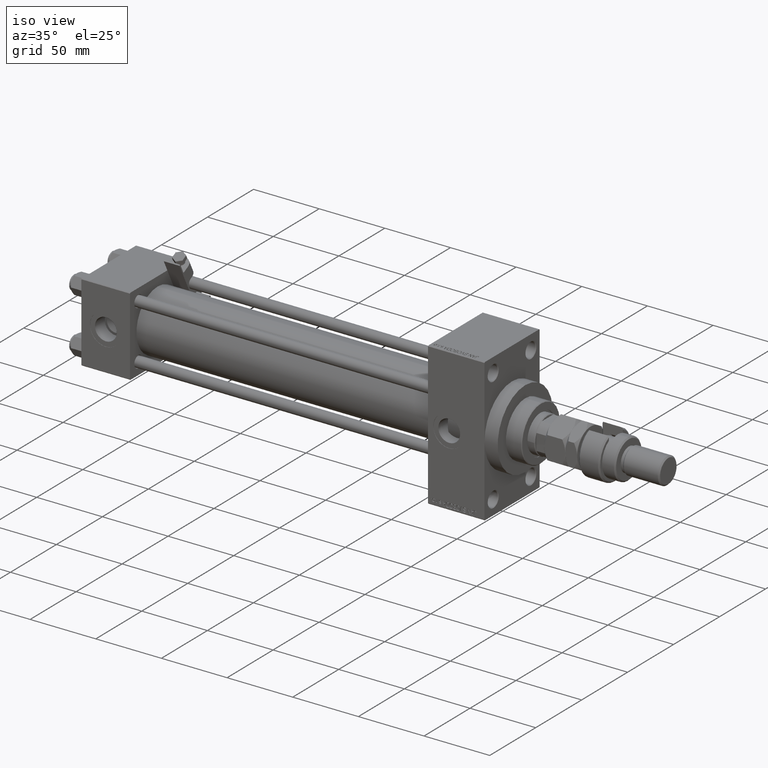
[diagram: clean part render]
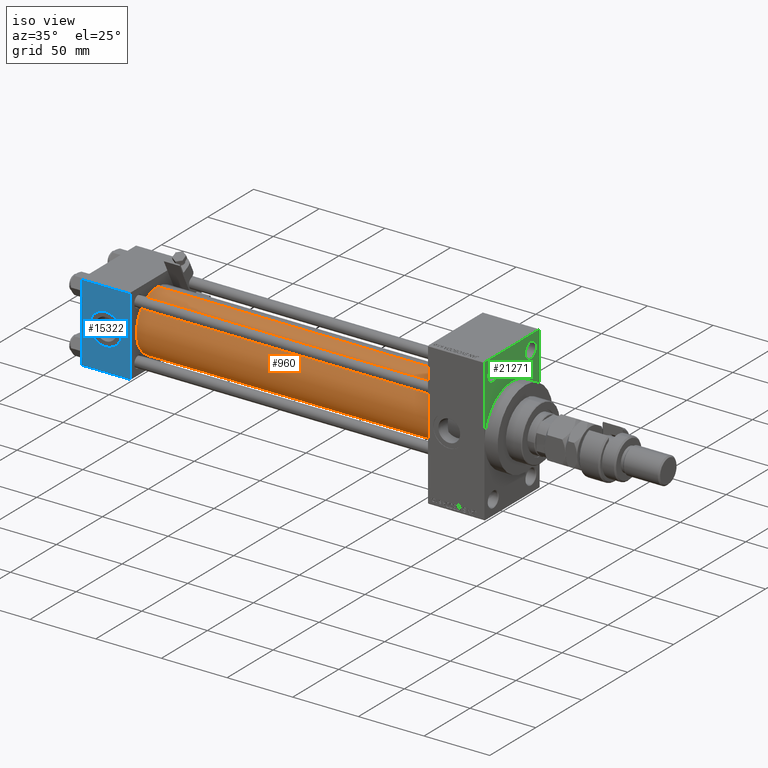
[diagram: same view with three faces highlighted in distinct colors, each labeled with its STEP entity id]
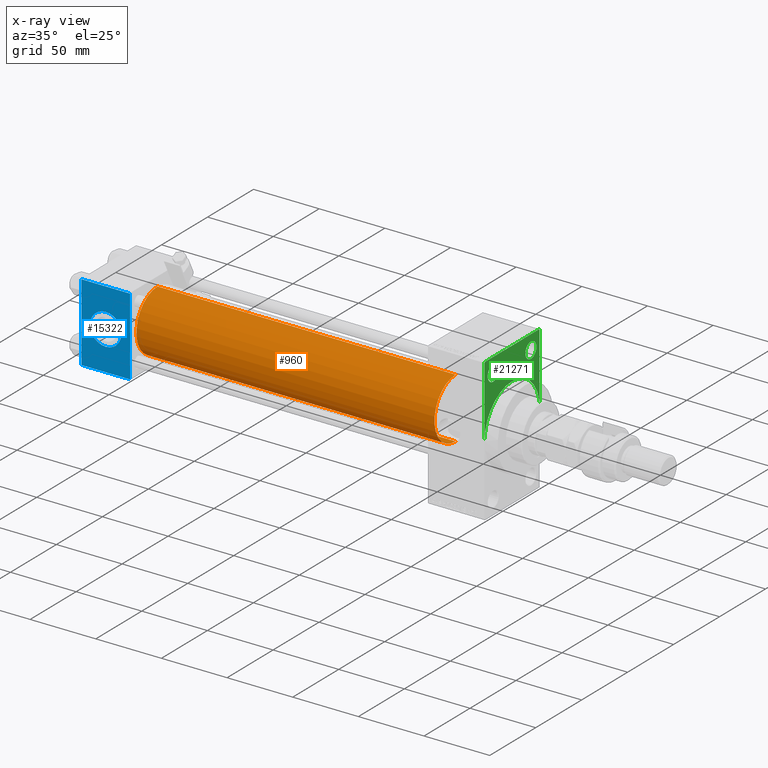
[diagram: x-ray of the same camera — body ghosted, the three highlighted faces saturated]
A machine part, iso view with three faces highlighted in distinct colors.
The next image is the same camera in x-ray (body ghosted, the three faces saturated) — at least one of them is partly hidden behind the body in this view.
Their STEP definitions:

[orange] entity #960 — the highlighted cylindrical surface (partial cylindrical patch) has radius 23 mm, axis along (-1, -0, -0).
#960 = ADVANCED_FACE ( 'NONE', ( #36312 ), #11574, .T. ) ;
#6752 = DIRECTION ( 'NONE',  ( -1.000000000000000000, -0.000000000000000000, -0.000000000000000000 ) ) ;
#7528 = DIRECTION ( 'NONE',  ( -1.000000000000000000, -0.000000000000000000, -0.000000000000000000 ) ) ;
#8204 = CARTESIAN_POINT ( 'NONE',  ( 264.0000000000000000, 2.146024240737012665E-16, -23.00000000000000000 ) ) ;
#10056 = AXIS2_PLACEMENT_3D ( 'NONE', #52119, #31681, #28170 ) ;
#10134 = VECTOR ( 'NONE', #6752, 1000.000000000000000 ) ;
#10596 = DIRECTION ( 'NONE',  ( 1.000000000000000000, 0.000000000000000000, 0.000000000000000000 ) ) ;
#11574 = CYLINDRICAL_SURFACE ( 'NONE', #49044, 23.00000000000000000 ) ;
#12160 = VERTEX_POINT ( 'NONE', #8204 ) ;
#14313 = VECTOR ( 'NONE', #41074, 1000.000000000000000 ) ;
#16194 = CARTESIAN_POINT ( 'NONE',  ( 37.00000000000000711, 2.146024240737012665E-16, -23.00000000000000000 ) ) ;
#17789 = EDGE_CURVE ( 'NONE', #22945, #39665, #44851, .T. ) ;
#18601 = ORIENTED_EDGE ( 'NONE', *, *, #42553, .T. ) ;
#19704 = EDGE_CURVE ( 'NONE', #12160, #47672, #52724, .T. ) ;
#22945 = VERTEX_POINT ( 'NONE', #23858 ) ;
#23858 = CARTESIAN_POINT ( 'NONE',  ( 264.0000000000000000, -2.602085213965210642E-15, 23.00000000000000000 ) ) ;
#23948 = DIRECTION ( 'NONE',  ( 0.000000000000000000, 0.000000000000000000, 1.000000000000000000 ) ) ;
#23965 = CARTESIAN_POINT ( 'NONE',  ( 264.0000000000000000, 2.146024240737012665E-16, -23.00000000000000000 ) ) ;
#24573 = EDGE_CURVE ( 'NONE', #22945, #12160, #32780, .T. ) ;
#25622 = ORIENTED_EDGE ( 'NONE', *, *, #19704, .F. ) ;
#25822 = ORIENTED_EDGE ( 'NONE', *, *, #24573, .F. ) ;
#27007 = DIRECTION ( 'NONE',  ( 0.000000000000000000, 0.000000000000000000, -1.000000000000000000 ) ) ;
#27273 = CARTESIAN_POINT ( 'NONE',  ( 264.0000000000000000, -2.602085213965210642E-15, 0.000000000000000000 ) ) ;
#28170 = DIRECTION ( 'NONE',  ( 0.000000000000000000, 0.000000000000000000, 1.000000000000000000 ) ) ;
#31681 = DIRECTION ( 'NONE',  ( 1.000000000000000000, -0.000000000000000000, 0.000000000000000000 ) ) ;
#32780 = CIRCLE ( 'NONE', #48278, 23.00000000000000000 ) ;
#36312 = FACE_OUTER_BOUND ( 'NONE', #39803, .T. ) ;
#36762 = ORIENTED_EDGE ( 'NONE', *, *, #17789, .T. ) ;
#39665 = VERTEX_POINT ( 'NONE', #47217 ) ;
#39803 = EDGE_LOOP ( 'NONE', ( #25622, #25822, #36762, #18601 ) ) ;
#41074 = DIRECTION ( 'NONE',  ( -1.000000000000000000, -0.000000000000000000, -0.000000000000000000 ) ) ;
#42553 = EDGE_CURVE ( 'NONE', #39665, #47672, #50399, .T. ) ;
#44851 = LINE ( 'NONE', #48092, #14313 ) ;
#47217 = CARTESIAN_POINT ( 'NONE',  ( 37.00000000000000711, -2.602085213965210642E-15, 23.00000000000000000 ) ) ;
#47672 = VERTEX_POINT ( 'NONE', #16194 ) ;
#48092 = CARTESIAN_POINT ( 'NONE',  ( 264.0000000000000000, -2.602085213965210642E-15, 23.00000000000000000 ) ) ;
#48278 = AXIS2_PLACEMENT_3D ( 'NONE', #27273, #10596, #27007 ) ;
#48942 = CARTESIAN_POINT ( 'NONE',  ( 264.0000000000000000, -2.602085213965210642E-15, 0.000000000000000000 ) ) ;
#49044 = AXIS2_PLACEMENT_3D ( 'NONE', #48942, #7528, #23948 ) ;
#50399 = CIRCLE ( 'NONE', #10056, 23.00000000000000000 ) ;
#52119 = CARTESIAN_POINT ( 'NONE',  ( 37.00000000000000711, -2.602085213965210642E-15, 0.000000000000000000 ) ) ;
#52724 = LINE ( 'NONE', #23965, #10134 ) ;

[blue] entity #15322 — the highlighted planar face has unit normal (0, 1, 0).
#1726 = VERTEX_POINT ( 'NONE', #35059 ) ;
#2707 = CIRCLE ( 'NONE', #22452, 12.00000000000000178 ) ;
#3890 = LINE ( 'NONE', #36716, #33050 ) ;
#4733 = AXIS2_PLACEMENT_3D ( 'NONE', #16571, #53148, #15788 ) ;
#5444 = CARTESIAN_POINT ( 'NONE',  ( 18.50000000000000000, -30.00000000000000000, 12.00000000000000178 ) ) ;
#6631 = LINE ( 'NONE', #40259, #21369 ) ;
#7555 = CARTESIAN_POINT ( 'NONE',  ( 37.00000000000000000, -30.00000000000000000, 29.99999999999999289 ) ) ;
#8704 = DIRECTION ( 'NONE',  ( 0.000000000000000000, 0.000000000000000000, -1.000000000000000000 ) ) ;
#8939 = CARTESIAN_POINT ( 'NONE',  ( 37.00000000000000000, -30.00000000000000000, 29.49999999999999289 ) ) ;
#9039 = CIRCLE ( 'NONE', #4733, 12.00000000000000178 ) ;
#9321 = EDGE_CURVE ( 'NONE', #15713, #1726, #3890, .T. ) ;
#9322 = CARTESIAN_POINT ( 'NONE',  ( 37.00000000000000000, -30.00000000000000000, -29.50000000000001776 ) ) ;
#10974 = EDGE_CURVE ( 'NONE', #15908, #15713, #37630, .T. ) ;
#11861 = PLANE ( 'NONE',  #32290 ) ;
#13185 = ORIENTED_EDGE ( 'NONE', *, *, #39323, .F. ) ;
#13257 = ORIENTED_EDGE ( 'NONE', *, *, #20845, .F. ) ;
#15322 = ADVANCED_FACE ( 'NONE', ( #20713, #40641 ), #11861, .F. ) ;
#15713 = VERTEX_POINT ( 'NONE', #38589 ) ;
#15788 = DIRECTION ( 'NONE',  ( 0.000000000000000000, 0.000000000000000000, -1.000000000000000000 ) ) ;
#15908 = VERTEX_POINT ( 'NONE', #8939 ) ;
#16007 = EDGE_LOOP ( 'NONE', ( #41619, #53036, #13257, #44288 ) ) ;
#16571 = CARTESIAN_POINT ( 'NONE',  ( 18.50000000000000000, -30.00000000000000000, 0.000000000000000000 ) ) ;
#20257 = EDGE_CURVE ( 'NONE', #1726, #48751, #26009, .T. ) ;
#20713 = FACE_BOUND ( 'NONE', #26890, .T. ) ;
#20845 = EDGE_CURVE ( 'NONE', #15908, #48751, #6631, .T. ) ;
#21369 = VECTOR ( 'NONE', #48325, 1000.000000000000000 ) ;
#22452 = AXIS2_PLACEMENT_3D ( 'NONE', #24306, #40712, #36674 ) ;
#24306 = CARTESIAN_POINT ( 'NONE',  ( 18.50000000000000000, -30.00000000000000000, 0.000000000000000000 ) ) ;
#24666 = EDGE_CURVE ( 'NONE', #37256, #52541, #2707, .T. ) ;
#26009 = LINE ( 'NONE', #9322, #28204 ) ;
#26069 = CARTESIAN_POINT ( 'NONE',  ( 37.00000000000000000, -30.00000000000000000, 29.49999999999999289 ) ) ;
#26890 = EDGE_LOOP ( 'NONE', ( #42297, #13185 ) ) ;
#28204 = VECTOR ( 'NONE', #46440, 1000.000000000000000 ) ;
#32290 = AXIS2_PLACEMENT_3D ( 'NONE', #7555, #44679, #52204 ) ;
#33050 = VECTOR ( 'NONE', #8704, 1000.000000000000000 ) ;
#34657 = DIRECTION ( 'NONE',  ( -1.000000000000000000, 0.000000000000000000, 0.000000000000000000 ) ) ;
#35059 = CARTESIAN_POINT ( 'NONE',  ( 0.000000000000000000, -30.00000000000000000, -29.50000000000001776 ) ) ;
#35891 = CARTESIAN_POINT ( 'NONE',  ( 18.50000000000000000, -30.00000000000000000, -12.00000000000000178 ) ) ;
#36674 = DIRECTION ( 'NONE',  ( 0.000000000000000000, 0.000000000000000000, -1.000000000000000000 ) ) ;
#36716 = CARTESIAN_POINT ( 'NONE',  ( 0.000000000000000000, -30.00000000000000000, 29.99999999999999289 ) ) ;
#37256 = VERTEX_POINT ( 'NONE', #35891 ) ;
#37630 = LINE ( 'NONE', #26069, #38239 ) ;
#38239 = VECTOR ( 'NONE', #34657, 1000.000000000000000 ) ;
#38589 = CARTESIAN_POINT ( 'NONE',  ( 0.000000000000000000, -30.00000000000000000, 29.49999999999999289 ) ) ;
#39323 = EDGE_CURVE ( 'NONE', #52541, #37256, #9039, .T. ) ;
#40259 = CARTESIAN_POINT ( 'NONE',  ( 37.00000000000000000, -30.00000000000000000, 29.99999999999999289 ) ) ;
#40641 = FACE_OUTER_BOUND ( 'NONE', #16007, .T. ) ;
#40712 = DIRECTION ( 'NONE',  ( 0.000000000000000000, -1.000000000000000000, -8.673617379884036705E-17 ) ) ;
#41619 = ORIENTED_EDGE ( 'NONE', *, *, #9321, .T. ) ;
#42297 = ORIENTED_EDGE ( 'NONE', *, *, #24666, .F. ) ;
#43338 = CARTESIAN_POINT ( 'NONE',  ( 37.00000000000000000, -30.00000000000000000, -29.50000000000001776 ) ) ;
#44288 = ORIENTED_EDGE ( 'NONE', *, *, #10974, .T. ) ;
#44679 = DIRECTION ( 'NONE',  ( -0.000000000000000000, 1.000000000000000000, 0.000000000000000000 ) ) ;
#46440 = DIRECTION ( 'NONE',  ( 1.000000000000000000, 0.000000000000000000, 0.000000000000000000 ) ) ;
#48325 = DIRECTION ( 'NONE',  ( 0.000000000000000000, 0.000000000000000000, -1.000000000000000000 ) ) ;
#48751 = VERTEX_POINT ( 'NONE', #43338 ) ;
#52204 = DIRECTION ( 'NONE',  ( 0.000000000000000000, -0.000000000000000000, 1.000000000000000000 ) ) ;
#52541 = VERTEX_POINT ( 'NONE', #5444 ) ;
#53036 = ORIENTED_EDGE ( 'NONE', *, *, #20257, .T. ) ;
#53148 = DIRECTION ( 'NONE',  ( 0.000000000000000000, -1.000000000000000000, -8.673617379884036705E-17 ) ) ;

[green] entity #21271 — the highlighted planar face has unit normal (-1, 0, 0).
#810 = ORIENTED_EDGE ( 'NONE', *, *, #30960, .T. ) ;
#1274 = CARTESIAN_POINT ( 'NONE',  ( 307.0000000000000000, 20.50000000000000000, 43.50000000000000000 ) ) ;
#1623 = CIRCLE ( 'NONE', #10241, 30.00000000000000000 ) ;
#1938 = CIRCLE ( 'NONE', #10551, 5.999999999999977796 ) ;
#2449 = ORIENTED_EDGE ( 'NONE', *, *, #27305, .T. ) ;
#3149 = CARTESIAN_POINT ( 'NONE',  ( 307.0000000000000000, 29.99999999999999645, 54.49999999999999289 ) ) ;
#3201 = VERTEX_POINT ( 'NONE', #18323 ) ;
#3595 = CARTESIAN_POINT ( 'NONE',  ( 307.0000000000000000, 0.000000000000000000, 0.000000000000000000 ) ) ;
#3792 = ORIENTED_EDGE ( 'NONE', *, *, #25225, .F. ) ;
#4149 = EDGE_CURVE ( 'NONE', #21773, #35881, #49188, .T. ) ;
#4259 = EDGE_CURVE ( 'NONE', #28375, #16769, #19014, .T. ) ;
#4314 = ORIENTED_EDGE ( 'NONE', *, *, #4149, .T. ) ;
#4377 = DIRECTION ( 'NONE',  ( 0.000000000000000000, 0.000000000000000000, 1.000000000000000000 ) ) ;
#5515 = DIRECTION ( 'NONE',  ( 0.000000000000000000, 0.000000000000000000, 1.000000000000000000 ) ) ;
#6297 = CIRCLE ( 'NONE', #42380, 5.999999999999977796 ) ;
#7893 = PLANE ( 'NONE',  #48009 ) ;
#9374 = CARTESIAN_POINT ( 'NONE',  ( 307.0000000000000000, 29.99999999999999645, 53.99999999999999289 ) ) ;
#9390 = CARTESIAN_POINT ( 'NONE',  ( 307.0000000000000000, 0.000000000000000000, 0.000000000000000000 ) ) ;
#10199 = DIRECTION ( 'NONE',  ( 0.000000000000000000, 0.000000000000000000, -1.000000000000000000 ) ) ;
#10241 = AXIS2_PLACEMENT_3D ( 'NONE', #26303, #30312, #22258 ) ;
#10526 = LINE ( 'NONE', #25870, #31042 ) ;
#10551 = AXIS2_PLACEMENT_3D ( 'NONE', #14797, #10766, #31197 ) ;
#10766 = DIRECTION ( 'NONE',  ( -1.000000000000000000, 0.000000000000000000, -0.000000000000000000 ) ) ;
#12000 = CARTESIAN_POINT ( 'NONE',  ( 307.0000000000000000, 20.50000000000000000, 37.50000000000002132 ) ) ;
#12465 = DIRECTION ( 'NONE',  ( -1.000000000000000000, 0.000000000000000000, -0.000000000000000000 ) ) ;
#14542 = ORIENTED_EDGE ( 'NONE', *, *, #32184, .T. ) ;
#14797 = CARTESIAN_POINT ( 'NONE',  ( 307.0000000000000000, 20.50000000000000000, 43.50000000000000000 ) ) ;
#15065 = CARTESIAN_POINT ( 'NONE',  ( 307.0000000000000000, -30.00000000000000000, 54.50000000000000000 ) ) ;
#16229 = FACE_BOUND ( 'NONE', #28387, .T. ) ;
#16333 = DIRECTION ( 'NONE',  ( 0.000000000000000000, -1.000000000000000000, 1.156482317317871478E-16 ) ) ;
#16769 = VERTEX_POINT ( 'NONE', #32696 ) ;
#17560 = CARTESIAN_POINT ( 'NONE',  ( 307.0000000000000000, 20.50000000000000000, 49.49999999999997158 ) ) ;
#17683 = DIRECTION ( 'NONE',  ( -1.000000000000000000, 0.000000000000000000, -0.000000000000000000 ) ) ;
#18233 = VECTOR ( 'NONE', #43517, 1000.000000000000000 ) ;
#18323 = CARTESIAN_POINT ( 'NONE',  ( 307.0000000000000000, -20.50000000000000000, 37.50000000000002132 ) ) ;
#19014 = LINE ( 'NONE', #3149, #18233 ) ;
#19695 = CARTESIAN_POINT ( 'NONE',  ( 307.0000000000000000, -29.50000000000002842, 54.50000000000000000 ) ) ;
#19845 = ORIENTED_EDGE ( 'NONE', *, *, #47583, .T. ) ;
#19859 = ORIENTED_EDGE ( 'NONE', *, *, #42556, .T. ) ;
#19996 = DIRECTION ( 'NONE',  ( -1.000000000000000000, 0.000000000000000000, -0.000000000000000000 ) ) ;
#21271 = ADVANCED_FACE ( 'NONE', ( #16229, #49300, #40454 ), #7893, .F. ) ;
#21773 = VERTEX_POINT ( 'NONE', #12000 ) ;
#22258 = DIRECTION ( 'NONE',  ( 0.000000000000000000, 0.000000000000000000, -1.000000000000000000 ) ) ;
#23678 = DIRECTION ( 'NONE',  ( 0.000000000000000000, 0.000000000000000000, -1.000000000000000000 ) ) ;
#23786 = ORIENTED_EDGE ( 'NONE', *, *, #24803, .T. ) ;
#23792 = EDGE_LOOP ( 'NONE', ( #4314, #810 ) ) ;
#24803 = EDGE_CURVE ( 'NONE', #28375, #26159, #10526, .T. ) ;
#25225 = EDGE_CURVE ( 'NONE', #34033, #52814, #37970, .T. ) ;
#25870 = CARTESIAN_POINT ( 'NONE',  ( 307.0000000000000000, 29.49999999999999645, 54.49999999999999289 ) ) ;
#26151 = ORIENTED_EDGE ( 'NONE', *, *, #50130, .T. ) ;
#26159 = VERTEX_POINT ( 'NONE', #47320 ) ;
#26303 = CARTESIAN_POINT ( 'NONE',  ( 307.0000000000000000, 0.000000000000000000, 0.000000000000000000 ) ) ;
#26485 = EDGE_LOOP ( 'NONE', ( #19859, #19845, #2449, #3792, #37195, #38125, #23786 ) ) ;
#27212 = VECTOR ( 'NONE', #16333, 1000.000000000000000 ) ;
#27305 = EDGE_CURVE ( 'NONE', #37585, #52814, #51907, .T. ) ;
#28338 = AXIS2_PLACEMENT_3D ( 'NONE', #53079, #12465, #4377 ) ;
#28375 = VERTEX_POINT ( 'NONE', #9374 ) ;
#28387 = EDGE_LOOP ( 'NONE', ( #26151, #14542 ) ) ;
#30312 = DIRECTION ( 'NONE',  ( 1.000000000000000000, 0.000000000000000000, 0.000000000000000000 ) ) ;
#30458 = CARTESIAN_POINT ( 'NONE',  ( 307.0000000000000000, -30.00000000000000000, 54.00000000000002842 ) ) ;
#30960 = EDGE_CURVE ( 'NONE', #35881, #21773, #1938, .T. ) ;
#30989 = DIRECTION ( 'NONE',  ( -0.000000000000000000, -0.7071067811865450192, -0.7071067811865500152 ) ) ;
#31042 = VECTOR ( 'NONE', #34460, 1000.000000000000114 ) ;
#31197 = DIRECTION ( 'NONE',  ( 0.000000000000000000, 0.000000000000000000, 1.000000000000000000 ) ) ;
#31698 = VECTOR ( 'NONE', #30989, 1000.000000000000000 ) ;
#31950 = AXIS2_PLACEMENT_3D ( 'NONE', #9390, #38449, #10199 ) ;
#32184 = EDGE_CURVE ( 'NONE', #50682, #3201, #6297, .T. ) ;
#32696 = CARTESIAN_POINT ( 'NONE',  ( 307.0000000000000000, 30.00000000000000000, 0.000000000000000000 ) ) ;
#33466 = CIRCLE ( 'NONE', #28338, 5.999999999999977796 ) ;
#34033 = VERTEX_POINT ( 'NONE', #36697 ) ;
#34091 = DIRECTION ( 'NONE',  ( 0.000000000000000000, 0.000000000000000000, 1.000000000000000000 ) ) ;
#34286 = CARTESIAN_POINT ( 'NONE',  ( 307.0000000000000000, -20.50000000000000000, 49.49999999999997158 ) ) ;
#34460 = DIRECTION ( 'NONE',  ( 0.000000000000000000, -0.7071067811865474617, 0.7071067811865474617 ) ) ;
#35881 = VERTEX_POINT ( 'NONE', #17560 ) ;
#36697 = CARTESIAN_POINT ( 'NONE',  ( 307.0000000000000000, 0.000000000000000000, 30.00000000000000000 ) ) ;
#37195 = ORIENTED_EDGE ( 'NONE', *, *, #46882, .F. ) ;
#37585 = VERTEX_POINT ( 'NONE', #47659 ) ;
#37970 = CIRCLE ( 'NONE', #31950, 30.00000000000000000 ) ;
#38125 = ORIENTED_EDGE ( 'NONE', *, *, #4259, .F. ) ;
#38449 = DIRECTION ( 'NONE',  ( 1.000000000000000000, 0.000000000000000000, 0.000000000000000000 ) ) ;
#38484 = CARTESIAN_POINT ( 'NONE',  ( 307.0000000000000000, -30.00000000000000000, 0.000000000000000000 ) ) ;
#40037 = CARTESIAN_POINT ( 'NONE',  ( 307.0000000000000000, 29.99999999999999645, 54.49999999999999289 ) ) ;
#40454 = FACE_OUTER_BOUND ( 'NONE', #26485, .T. ) ;
#40720 = DIRECTION ( 'NONE',  ( -0.000000000000000000, 0.000000000000000000, 1.000000000000000000 ) ) ;
#42377 = CARTESIAN_POINT ( 'NONE',  ( 307.0000000000000000, -20.50000000000000000, 43.50000000000000000 ) ) ;
#42380 = AXIS2_PLACEMENT_3D ( 'NONE', #42377, #46406, #5515 ) ;
#42556 = EDGE_CURVE ( 'NONE', #26159, #47719, #53173, .T. ) ;
#43048 = VECTOR ( 'NONE', #23678, 1000.000000000000000 ) ;
#43517 = DIRECTION ( 'NONE',  ( 0.000000000000000000, 0.000000000000000000, -1.000000000000000000 ) ) ;
#46406 = DIRECTION ( 'NONE',  ( -1.000000000000000000, 0.000000000000000000, -0.000000000000000000 ) ) ;
#46882 = EDGE_CURVE ( 'NONE', #16769, #34033, #1623, .T. ) ;
#47320 = CARTESIAN_POINT ( 'NONE',  ( 307.0000000000000000, 29.49999999999999645, 54.49999999999999289 ) ) ;
#47583 = EDGE_CURVE ( 'NONE', #47719, #37585, #51441, .T. ) ;
#47659 = CARTESIAN_POINT ( 'NONE',  ( 307.0000000000000000, -30.00000000000000000, 54.00000000000002842 ) ) ;
#47719 = VERTEX_POINT ( 'NONE', #19695 ) ;
#48009 = AXIS2_PLACEMENT_3D ( 'NONE', #3595, #19996, #40720 ) ;
#49188 = CIRCLE ( 'NONE', #50870, 5.999999999999977796 ) ;
#49300 = FACE_BOUND ( 'NONE', #23792, .T. ) ;
#50130 = EDGE_CURVE ( 'NONE', #3201, #50682, #33466, .T. ) ;
#50682 = VERTEX_POINT ( 'NONE', #34286 ) ;
#50870 = AXIS2_PLACEMENT_3D ( 'NONE', #1274, #17683, #34091 ) ;
#51441 = LINE ( 'NONE', #30458, #31698 ) ;
#51907 = LINE ( 'NONE', #15065, #43048 ) ;
#52814 = VERTEX_POINT ( 'NONE', #38484 ) ;
#53079 = CARTESIAN_POINT ( 'NONE',  ( 307.0000000000000000, -20.50000000000000000, 43.50000000000000000 ) ) ;
#53173 = LINE ( 'NONE', #40037, #27212 ) ;